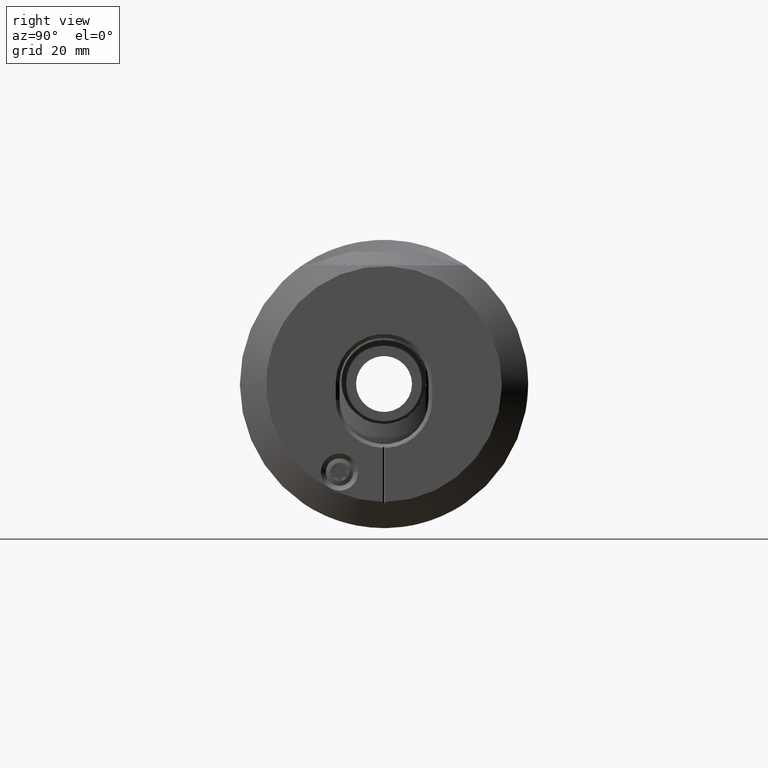
[diagram: clean part render]
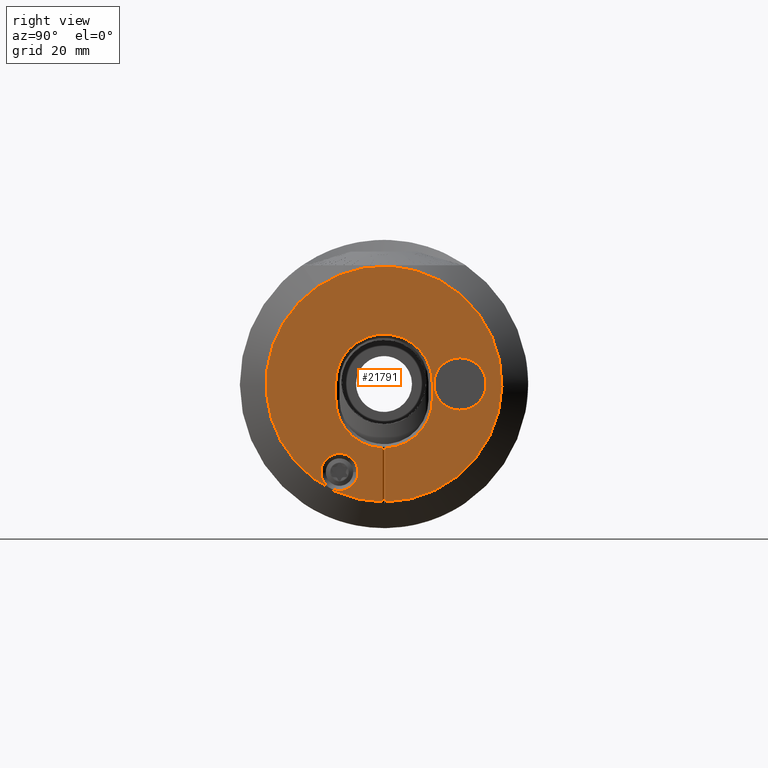
[diagram: same view with one face highlighted and labeled with its STEP entity id]
A machine part, right view. The second image highlights one B-rep face of the part: STEP entity #21791.
In plain terms, the highlighted planar face has unit normal (1, 0, 0).
Its self-contained STEP definition (entity closure, byte-faithful):
#417 = CARTESIAN_POINT ( 'NONE',  ( 60.00000000000000000, -9.199999999999978000, 0.3499999999999993700 ) ) ;
#537 = CARTESIAN_POINT ( 'NONE',  ( 60.00000000000000000, 0.2500000000000000000, -27.50000000000000400 ) ) ;
#640 = EDGE_CURVE ( 'NONE', #6709, #11837, #26454, .T. ) ;
#712 = CIRCLE ( 'NONE', #4115, 9.199999999999986900 ) ;
#1420 = CARTESIAN_POINT ( 'NONE',  ( 60.00000000000000000, -9.199999999999983300, 0.3499999999999993700 ) ) ;
#2554 = VERTEX_POINT ( 'NONE', #10977 ) ;
#2588 = FACE_BOUND ( 'NONE', #23915, .T. ) ;
#2981 = VERTEX_POINT ( 'NONE', #19345 ) ;
#3057 = VECTOR ( 'NONE', #4038, 1000.000000000000000 ) ;
#3330 = DIRECTION ( 'NONE',  ( 0.0000000000000000000, 0.0000000000000000000, -1.000000000000000000 ) ) ;
#3624 = VECTOR ( 'NONE', #12272, 1000.000000000000000 ) ;
#4008 = CARTESIAN_POINT ( 'NONE',  ( 60.00000000000000000, -9.199999999999985100, -3.000000000000001300 ) ) ;
#4038 = DIRECTION ( 'NONE',  ( 0.0000000000000000000, 0.0000000000000000000, -1.000000000000000000 ) ) ;
#4070 = AXIS2_PLACEMENT_3D ( 'NONE', #11939, #16245, #3330 ) ;
#4071 = DIRECTION ( 'NONE',  ( -1.000000000000000000, -1.224646799147353200E-016, 0.0000000000000000000 ) ) ;
#4091 = EDGE_CURVE ( 'NONE', #2981, #20967, #10841, .T. ) ;
#4115 = AXIS2_PLACEMENT_3D ( 'NONE', #18844, #25782, #16869 ) ;
#4363 = DIRECTION ( 'NONE',  ( -1.000000000000000000, -1.224646799147353200E-016, 0.0000000000000000000 ) ) ;
#4730 = ORIENTED_EDGE ( 'NONE', *, *, #4091, .T. ) ;
#5102 = VECTOR ( 'NONE', #21989, 1000.000000000000000 ) ;
#5543 = ORIENTED_EDGE ( 'NONE', *, *, #15082, .F. ) ;
#5646 = AXIS2_PLACEMENT_3D ( 'NONE', #5778, #19450, #6239 ) ;
#5778 = CARTESIAN_POINT ( 'NONE',  ( 60.00000000000000000, -1.738812217179013800E-015, 0.0000000000000000000 ) ) ;
#6239 = DIRECTION ( 'NONE',  ( -1.224646799147353200E-016, 1.000000000000000000, 0.0000000000000000000 ) ) ;
#6544 = DIRECTION ( 'NONE',  ( 0.0000000000000000000, 1.000000000000000000, 0.0000000000000000000 ) ) ;
#6709 = VERTEX_POINT ( 'NONE', #417 ) ;
#7691 = FACE_BOUND ( 'NONE', #10938, .T. ) ;
#7871 = EDGE_CURVE ( 'NONE', #20967, #10038, #26911, .T. ) ;
#8759 = ORIENTED_EDGE ( 'NONE', *, *, #640, .T. ) ;
#9684 = AXIS2_PLACEMENT_3D ( 'NONE', #22507, #26801, #13979 ) ;
#10038 = VERTEX_POINT ( 'NONE', #4008 ) ;
#10611 = CIRCLE ( 'NONE', #22836, 3.543375672974049500 ) ;
#10841 = LINE ( 'NONE', #26287, #5102 ) ;
#10938 = EDGE_LOOP ( 'NONE', ( #5543 ) ) ;
#10977 = CARTESIAN_POINT ( 'NONE',  ( 60.00000000000000000, 14.50000000000000700, -4.999999999999999100 ) ) ;
#11124 = ORIENTED_EDGE ( 'NONE', *, *, #23127, .F. ) ;
#11152 = ORIENTED_EDGE ( 'NONE', *, *, #14110, .T. ) ;
#11214 = EDGE_CURVE ( 'NONE', #10038, #6709, #15792, .T. ) ;
#11406 = CARTESIAN_POINT ( 'NONE',  ( 60.00000000000000000, -0.2500000000000000000, -12.19660263358158400 ) ) ;
#11837 = VERTEX_POINT ( 'NONE', #21777 ) ;
#11939 = CARTESIAN_POINT ( 'NONE',  ( 60.00000000000000000, 14.50000000000000700, 0.0000000000000000000 ) ) ;
#12199 = DIRECTION ( 'NONE',  ( 1.000000000000000000, 1.768302171161740500E-016, -0.0000000000000000000 ) ) ;
#12272 = DIRECTION ( 'NONE',  ( -6.341562842569455100E-032, 5.178279032766588600E-016, 1.000000000000000000 ) ) ;
#12369 = CARTESIAN_POINT ( 'NONE',  ( 60.00000000000000000, 9.199999999999986900, -2.999999999999999600 ) ) ;
#12677 = ORIENTED_EDGE ( 'NONE', *, *, #24900, .T. ) ;
#13022 = CARTESIAN_POINT ( 'NONE',  ( 60.00000000000000000, -4.956624327025941100, -16.80000000000000100 ) ) ;
#13556 = DIRECTION ( 'NONE',  ( -0.0000000000000000000, -0.0000000000000000000, 1.000000000000000000 ) ) ;
#13979 = DIRECTION ( 'NONE',  ( 0.0000000000000000000, 1.000000000000000000, 0.0000000000000000000 ) ) ;
#14110 = EDGE_CURVE ( 'NONE', #14220, #2981, #23390, .T. ) ;
#14220 = VERTEX_POINT ( 'NONE', #16590 ) ;
#14647 = CARTESIAN_POINT ( 'NONE',  ( 60.00000000000000000, 7.347880794884118400E-015, 0.3499999999999999800 ) ) ;
#15076 = EDGE_CURVE ( 'NONE', #2554, #2554, #22696, .T. ) ;
#15082 = EDGE_CURVE ( 'NONE', #17027, #17027, #10611, .T. ) ;
#15403 = ORIENTED_EDGE ( 'NONE', *, *, #7871, .T. ) ;
#15792 = LINE ( 'NONE', #1420, #3624 ) ;
#15975 = VERTEX_POINT ( 'NONE', #12369 ) ;
#16245 = DIRECTION ( 'NONE',  ( 1.000000000000000000, -0.0000000000000000000, -0.0000000000000000000 ) ) ;
#16363 = CARTESIAN_POINT ( 'NONE',  ( 60.00000000000000000, 0.2499999999999999400, -12.19660263358158600 ) ) ;
#16523 = DIRECTION ( 'NONE',  ( 0.0000000000000000000, 1.000000000000000000, 0.0000000000000000000 ) ) ;
#16590 = CARTESIAN_POINT ( 'NONE',  ( 60.00000000000000000, 0.2500000000000000000, -22.50009313612660500 ) ) ;
#16747 = AXIS2_PLACEMENT_3D ( 'NONE', #14647, #4071, #18825 ) ;
#16869 = DIRECTION ( 'NONE',  ( 0.0000000000000000000, 1.000000000000000000, 0.0000000000000000000 ) ) ;
#16941 = AXIS2_PLACEMENT_3D ( 'NONE', #17254, #4363, #6544 ) ;
#17027 = VERTEX_POINT ( 'NONE', #13022 ) ;
#17254 = CARTESIAN_POINT ( 'NONE',  ( 60.00000000000000000, 7.347880794884118400E-015, -2.999999999999999600 ) ) ;
#18124 = ORIENTED_EDGE ( 'NONE', *, *, #24869, .T. ) ;
#18316 = VECTOR ( 'NONE', #13556, 1000.000000000000000 ) ;
#18508 = EDGE_LOOP ( 'NONE', ( #4730, #15403, #19075, #8759, #12677, #18124, #11124, #11152 ) ) ;
#18825 = DIRECTION ( 'NONE',  ( 0.0000000000000000000, 1.000000000000000000, 0.0000000000000000000 ) ) ;
#18844 = CARTESIAN_POINT ( 'NONE',  ( 60.00000000000000000, 7.347880794884118400E-015, -2.999999999999999600 ) ) ;
#18997 = PLANE ( 'NONE',  #5646 ) ;
#19075 = ORIENTED_EDGE ( 'NONE', *, *, #11214, .T. ) ;
#19345 = CARTESIAN_POINT ( 'NONE',  ( 60.00000000000000000, -0.2500000000000000000, -22.50009313612660500 ) ) ;
#19450 = DIRECTION ( 'NONE',  ( 1.000000000000000000, 1.224646799147353200E-016, -0.0000000000000000000 ) ) ;
#20967 = VERTEX_POINT ( 'NONE', #11406 ) ;
#21338 = LINE ( 'NONE', #537, #18316 ) ;
#21777 = CARTESIAN_POINT ( 'NONE',  ( 60.00000000000000000, 9.199999999999990400, 0.3499999999999999800 ) ) ;
#21791 = ADVANCED_FACE ( 'NONE', ( #2588, #24802, #7691 ), #18997, .T. ) ;
#21989 = DIRECTION ( 'NONE',  ( -0.0000000000000000000, -0.0000000000000000000, 1.000000000000000000 ) ) ;
#22240 = LINE ( 'NONE', #23506, #3057 ) ;
#22507 = CARTESIAN_POINT ( 'NONE',  ( 60.00000000000000000, -1.738812217179013400E-015, 0.0000000000000000000 ) ) ;
#22625 = CARTESIAN_POINT ( 'NONE',  ( 60.00000000000000000, -8.499999999999989300, -16.80000000000000100 ) ) ;
#22696 = CIRCLE ( 'NONE', #4070, 4.999999999999999100 ) ;
#22836 = AXIS2_PLACEMENT_3D ( 'NONE', #22625, #12199, #16523 ) ;
#23127 = EDGE_CURVE ( 'NONE', #14220, #27424, #21338, .T. ) ;
#23224 = ORIENTED_EDGE ( 'NONE', *, *, #15076, .F. ) ;
#23390 = CIRCLE ( 'NONE', #9684, 22.50148197640261200 ) ;
#23506 = CARTESIAN_POINT ( 'NONE',  ( 60.00000000000000000, 9.199999999999986900, -2.999999999999999600 ) ) ;
#23915 = EDGE_LOOP ( 'NONE', ( #23224 ) ) ;
#24802 = FACE_OUTER_BOUND ( 'NONE', #18508, .T. ) ;
#24869 = EDGE_CURVE ( 'NONE', #15975, #27424, #712, .T. ) ;
#24900 = EDGE_CURVE ( 'NONE', #11837, #15975, #22240, .T. ) ;
#25782 = DIRECTION ( 'NONE',  ( -1.000000000000000000, -1.224646799147353200E-016, 0.0000000000000000000 ) ) ;
#26287 = CARTESIAN_POINT ( 'NONE',  ( 60.00000000000000000, -0.2500000000000000000, -27.50000000000000400 ) ) ;
#26454 = CIRCLE ( 'NONE', #16747, 9.199999999999985100 ) ;
#26801 = DIRECTION ( 'NONE',  ( 1.000000000000000000, 1.224646799147353200E-016, -0.0000000000000000000 ) ) ;
#26911 = CIRCLE ( 'NONE', #16941, 9.199999999999986900 ) ;
#27424 = VERTEX_POINT ( 'NONE', #16363 ) ;